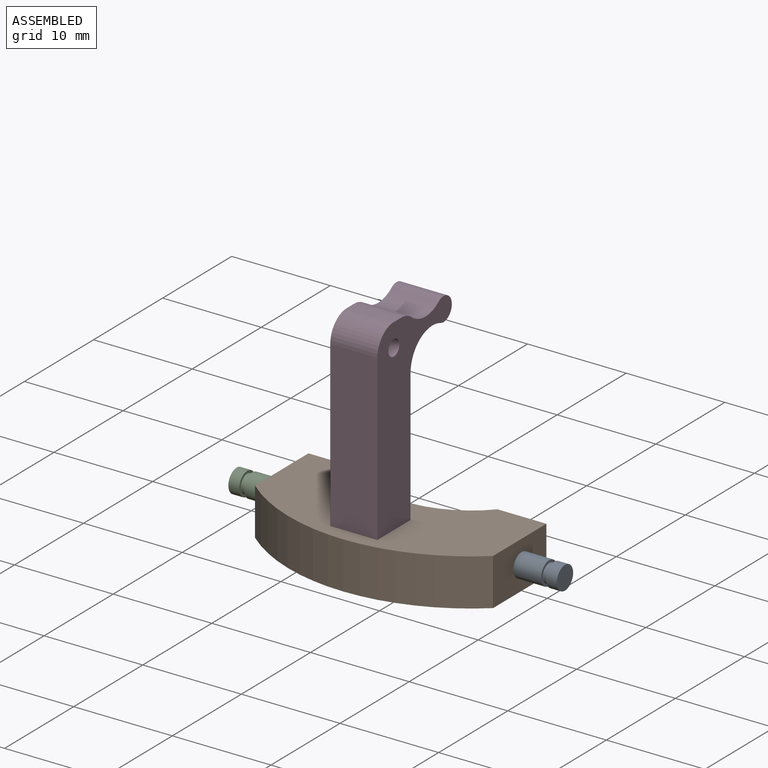
[diagram: assembled view]
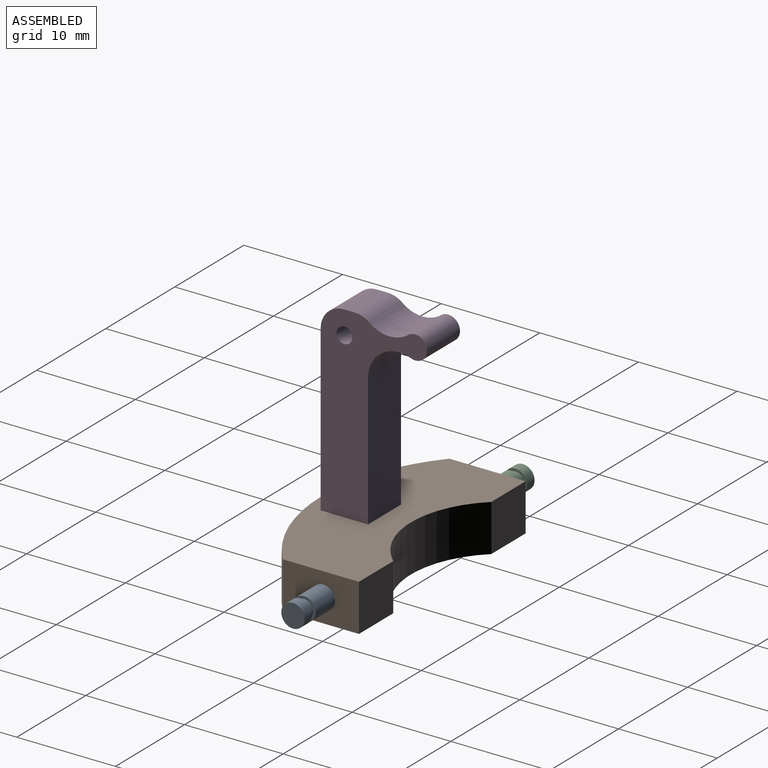
[diagram: assembled view, second angle]
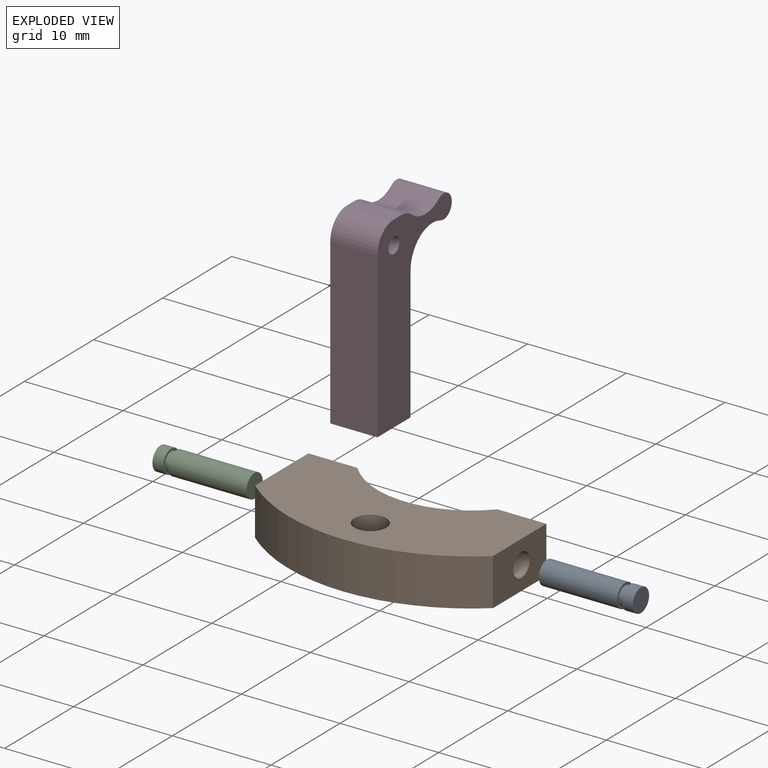
[diagram: exploded view]
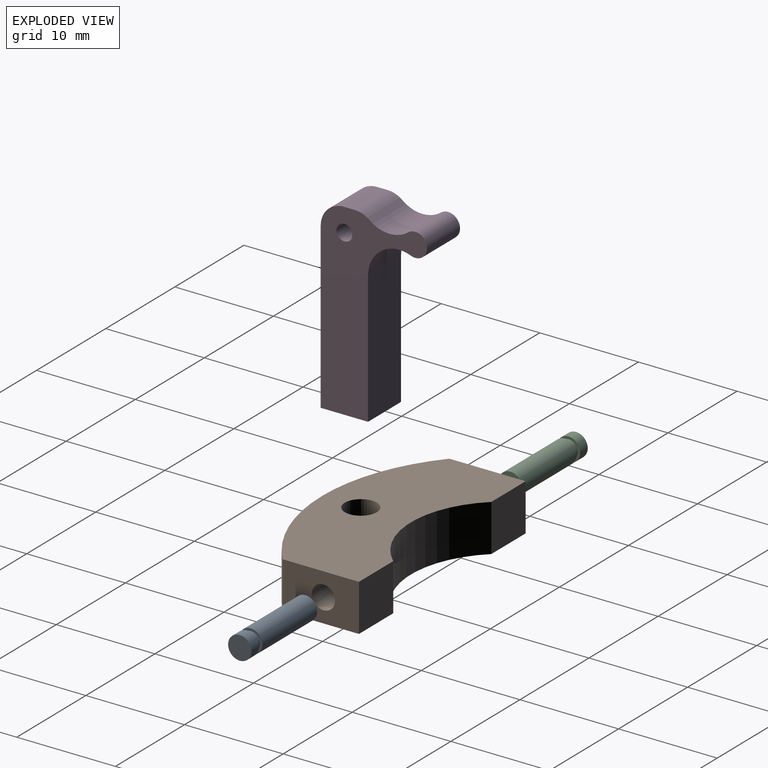
[diagram: exploded view, second angle]
ASSEMBLY  parts=4 mates=3
PART A: 7 faces, bbox 2.4x2.4x9.5 mm
  f0: cylinder r=1.18mm len=2.36mm, axis (0,0,-1), area 8.1mm2, adj f1,f2
  f1: plane 2.36x2.36mm, normal (0,0,1), area 4.4mm2, adj f0
  f2: plane 2.36x2.36mm, normal (0,0,-1), area 1.7mm2, adj f0,f3
  f3: cylinder r=0.93mm len=1.85mm, axis (0,0,1), area 3mm2, adj f2,f4
  f4: plane 2.36x2.36mm, normal (0,0,1), area 1.7mm2, adj f3,f6
  f5: plane 2.36x2.36mm, normal (0,0,-1), area 4.4mm2, adj f6
  f6: cylinder r=1.18mm len=7.92mm, axis (0,0,-1), area 58.8mm2, adj f4,f5
PART B: 14 faces, bbox 12.2x4.8x24.1 mm
  f0: plane 4.97x4.78mm, normal (1,0,0), area 23.7mm2, adj f1,f5,f6,f7
  f1: cylinder r=9.53mm len=14.2mm, axis (0,1,0), area 76.5mm2, adj f0,f2,f6,f7
  f2: plane 4.97x4.78mm, normal (1,0,0), area 23.7mm2, adj f1,f3,f6,f7
  f3: plane 7.73x4.78mm, normal (0,0,1), area 32.5mm2, adj f2,f4,f6,f7,f13
  f4: cylinder r=18.54mm len=24.13mm, axis (0,1,0), area 125.5mm2, adj f3,f5,f6,f7
  f5: plane 7.73x4.78mm, normal (0,0,-1), area 32.5mm2, adj f0,f4,f6,f7,f11
  f6: plane 24.13x12.19mm, normal (0,-1,0), area 196.1mm2, adj f0,f1,f2,f3,f4,f5,f9
  f7: plane 24.13x12.19mm, normal (0,1,0), area 220.6mm2, adj f0,f1,f2,f3,f4,f5,f8
  f8: cylinder r=1.63mm len=3.26mm, axis (0,-1,0), area 30mm2, adj f7,f9
  f9: cone r=1.63mm half-angle=41deg, axis (0,-1,0), area 37.5mm2, adj f6,f8
  f10: cone r=0mm half-angle=59deg, axis (0,0,-1), area 5.1mm2, adj f11
  f11: cylinder r=1.18mm len=4.76mm, axis (0,0,-1), area 35.3mm2, adj f5,f10
  f12: cone r=0mm half-angle=59deg, axis (0,0,1), area 5.1mm2, adj f13
  f13: cylinder r=1.18mm len=4.76mm, axis (0,0,1), area 35.3mm2, adj f3,f12
PART C: same geometry as A
PART D: 14 faces, bbox 4.8x10.8x19.1 mm
  f0: plane 13.44x4.78mm, normal (0,1,0), area 64.2mm2, adj f1,f8,f9,f10
  f1: cylinder r=3.17mm len=4.78mm, axis (-1,0,0), area 29.7mm2, adj f0,f2,f9,f10
  f2: cylinder r=1.19mm len=4.78mm, axis (-1,0,0), area 23.2mm2, adj f1,f3,f9,f10
  f3: cylinder r=3.17mm len=4.78mm, axis (-1,0,0), area 20.5mm2, adj f2,f4,f9,f10
  f4: cylinder r=2.36mm len=4.78mm, axis (-1,0,0), area 7.7mm2, adj f3,f5,f9,f10
  f5: plane 4.78x1.1mm, normal (0,0,1), area 5.3mm2, adj f4,f6,f9,f10
  f6: cylinder r=2.36mm len=4.78mm, axis (-1,0,0), area 17.7mm2, adj f5,f7,f9,f10
  f7: plane 16.69x4.78mm, normal (0,-1,0), area 79.7mm2, adj f6,f8,f9,f10
  f8: plane 4.8x4.78mm, normal (0,0,-1), area 18.9mm2, adj f0,f7,f9,f10,f12
  f9: plane 19.05x10.78mm, normal (1,0,0), area 99.9mm2, adj f0,f1,f2,f3,f4,f5,f6,f7
  f10: plane 19.05x10.78mm, normal (-1,0,0), area 99.9mm2, adj f0,f1,f2,f3,f4,f5,f6,f7
  f11: cone r=0mm half-angle=59deg, axis (0,0,-1), area 4.7mm2, adj f12
  f12: cylinder r=1.13mm len=11.43mm, axis (0,0,-1), area 81.2mm2, adj f8,f11
  f13: cylinder r=0.8mm len=4.78mm, axis (1,0,0), area 24mm2, adj f9,f10
PLACE A rot(axis=(0.58,0.58,0.58),120deg) t=(3.1,8.83,3.62)mm
PLACE B rot(axis=(0.58,0.58,0.58),120deg) t=(-3.85,18.79,3.62)mm
PLACE C rot(axis=(-0.58,-0.58,0.58),120deg) t=(-11.15,8.83,3.62)mm
PLACE D t=(-3.85,1.78,6.01)mm
MATE fastened C.f0 <-> B.f10  axis (1,0,0) through (-11.15,8.83,3.62)mm
MATE fastened B.f10 <-> A.f0  axis (1,0,0) through (3.1,8.83,3.62)mm
MATE fastened B.f8 <-> D.f11  axis (0,0,1) through (-3.85,4.18,6.01)mm
